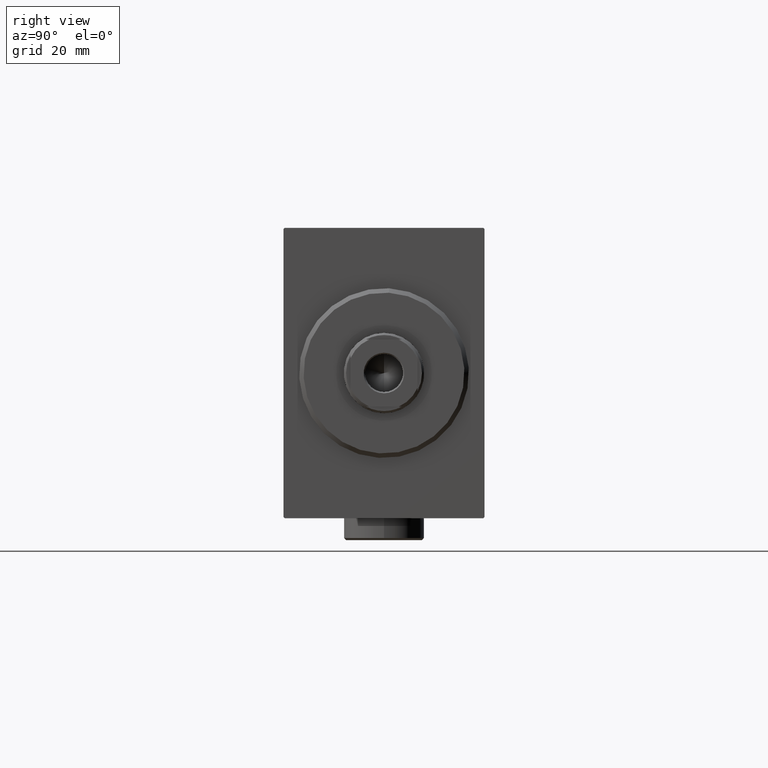
[diagram: clean part render]
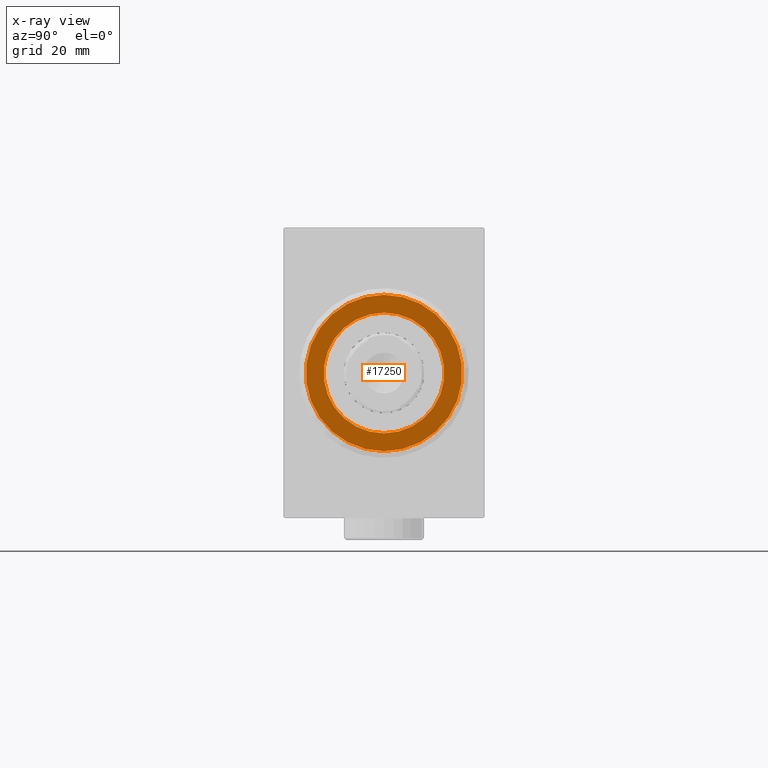
[diagram: x-ray — body ghosted, one internal face saturated and labeled with its STEP entity id]
A machine part, right view, then the same camera in x-ray: the body is ghosted and one INTERNAL B-rep face — a face not visible from any outside direction — is saturated and labeled: STEP entity #17250.
In plain terms, the highlighted planar face has unit normal (1, 0, -0).
Its self-contained STEP definition (entity closure, byte-faithful):
#3177 = CARTESIAN_POINT ( 'NONE',  ( 5.000000000000000000, 0.000000000000000000, 0.000000000000000000 ) ) ;
#5047 = EDGE_CURVE ( 'NONE', #17619, #40196, #30988, .T. ) ;
#5542 = DIRECTION ( 'NONE',  ( 0.000000000000000000, 0.000000000000000000, 1.000000000000000000 ) ) ;
#7154 = ORIENTED_EDGE ( 'NONE', *, *, #5047, .T. ) ;
#11631 = AXIS2_PLACEMENT_3D ( 'NONE', #28421, #43929, #43709 ) ;
#11840 = FACE_OUTER_BOUND ( 'NONE', #29872, .T. ) ;
#12017 = CIRCLE ( 'NONE', #37212, 17.50000000000000355 ) ;
#13123 = CARTESIAN_POINT ( 'NONE',  ( 5.000000000000000000, 0.000000000000000000, 17.50000000000000355 ) ) ;
#14335 = CARTESIAN_POINT ( 'NONE',  ( 5.000000000000000000, 0.000000000000000000, 0.000000000000000000 ) ) ;
#14906 = DIRECTION ( 'NONE',  ( 0.000000000000000000, 0.000000000000000000, 1.000000000000000000 ) ) ;
#15664 = CARTESIAN_POINT ( 'NONE',  ( 5.000000000000000000, 0.000000000000000000, 0.000000000000000000 ) ) ;
#17250 = ADVANCED_FACE ( 'NONE', ( #22657, #11840 ), #22198, .T. ) ;
#17619 = VERTEX_POINT ( 'NONE', #13123 ) ;
#17728 = DIRECTION ( 'NONE',  ( 0.000000000000000000, 0.000000000000000000, 1.000000000000000000 ) ) ;
#18407 = EDGE_CURVE ( 'NONE', #40196, #17619, #12017, .T. ) ;
#19631 = DIRECTION ( 'NONE',  ( -1.000000000000000000, 0.000000000000000000, 0.000000000000000000 ) ) ;
#21211 = VERTEX_POINT ( 'NONE', #21778 ) ;
#21662 = DIRECTION ( 'NONE',  ( -1.000000000000000000, 0.000000000000000000, 0.000000000000000000 ) ) ;
#21778 = CARTESIAN_POINT ( 'NONE',  ( 5.000000000000000000, 0.000000000000000000, 13.50000000000000000 ) ) ;
#22198 = PLANE ( 'NONE',  #41501 ) ;
#22366 = AXIS2_PLACEMENT_3D ( 'NONE', #42378, #21662, #14906 ) ;
#22657 = FACE_BOUND ( 'NONE', #40352, .T. ) ;
#23226 = DIRECTION ( 'NONE',  ( 0.000000000000000000, 0.000000000000000000, 1.000000000000000000 ) ) ;
#28005 = CARTESIAN_POINT ( 'NONE',  ( 5.000000000000000000, 2.143131898507868643E-15, -17.50000000000000355 ) ) ;
#28421 = CARTESIAN_POINT ( 'NONE',  ( 5.000000000000000000, 0.000000000000000000, 0.000000000000000000 ) ) ;
#28650 = VERTEX_POINT ( 'NONE', #39031 ) ;
#28751 = DIRECTION ( 'NONE',  ( -1.000000000000000000, 0.000000000000000000, 0.000000000000000000 ) ) ;
#29398 = DIRECTION ( 'NONE',  ( -1.000000000000000000, 0.000000000000000000, 0.000000000000000000 ) ) ;
#29872 = EDGE_LOOP ( 'NONE', ( #7154, #38913 ) ) ;
#30656 = ORIENTED_EDGE ( 'NONE', *, *, #35146, .F. ) ;
#30988 = CIRCLE ( 'NONE', #22366, 17.50000000000000355 ) ;
#31853 = CIRCLE ( 'NONE', #40463, 13.50000000000000000 ) ;
#35146 = EDGE_CURVE ( 'NONE', #28650, #21211, #41114, .T. ) ;
#35314 = ORIENTED_EDGE ( 'NONE', *, *, #36900, .F. ) ;
#36900 = EDGE_CURVE ( 'NONE', #21211, #28650, #31853, .T. ) ;
#37212 = AXIS2_PLACEMENT_3D ( 'NONE', #14335, #28751, #17728 ) ;
#38913 = ORIENTED_EDGE ( 'NONE', *, *, #18407, .T. ) ;
#39031 = CARTESIAN_POINT ( 'NONE',  ( 5.000000000000000000, 1.653273178848926867E-15, -13.50000000000000000 ) ) ;
#40196 = VERTEX_POINT ( 'NONE', #28005 ) ;
#40352 = EDGE_LOOP ( 'NONE', ( #35314, #30656 ) ) ;
#40463 = AXIS2_PLACEMENT_3D ( 'NONE', #3177, #19631, #23226 ) ;
#41114 = CIRCLE ( 'NONE', #11631, 13.50000000000000000 ) ;
#41501 = AXIS2_PLACEMENT_3D ( 'NONE', #15664, #29398, #5542 ) ;
#42378 = CARTESIAN_POINT ( 'NONE',  ( 5.000000000000000000, 0.000000000000000000, 0.000000000000000000 ) ) ;
#43709 = DIRECTION ( 'NONE',  ( 0.000000000000000000, 0.000000000000000000, 1.000000000000000000 ) ) ;
#43929 = DIRECTION ( 'NONE',  ( -1.000000000000000000, 0.000000000000000000, 0.000000000000000000 ) ) ;